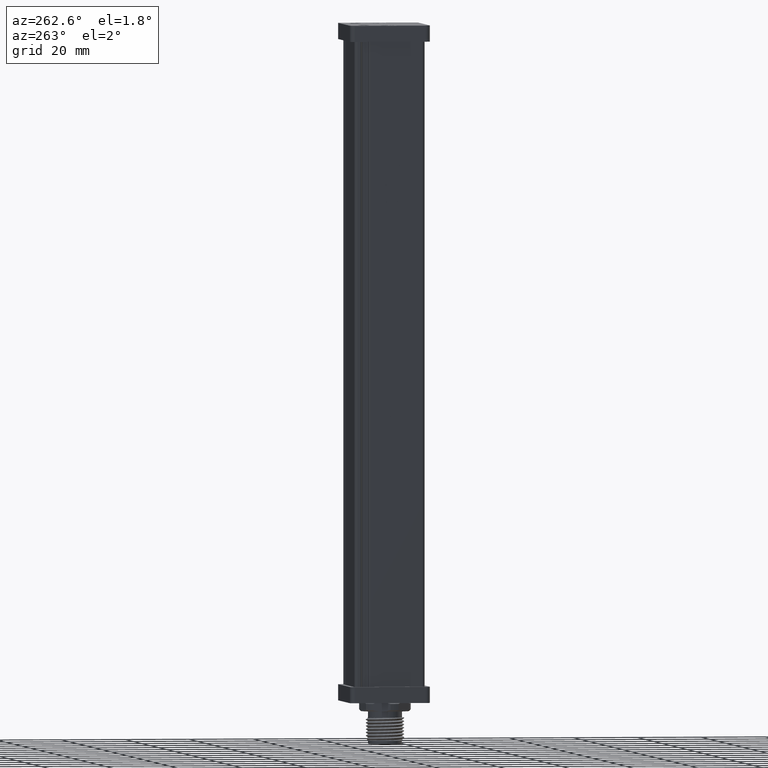
[diagram: clean part render]
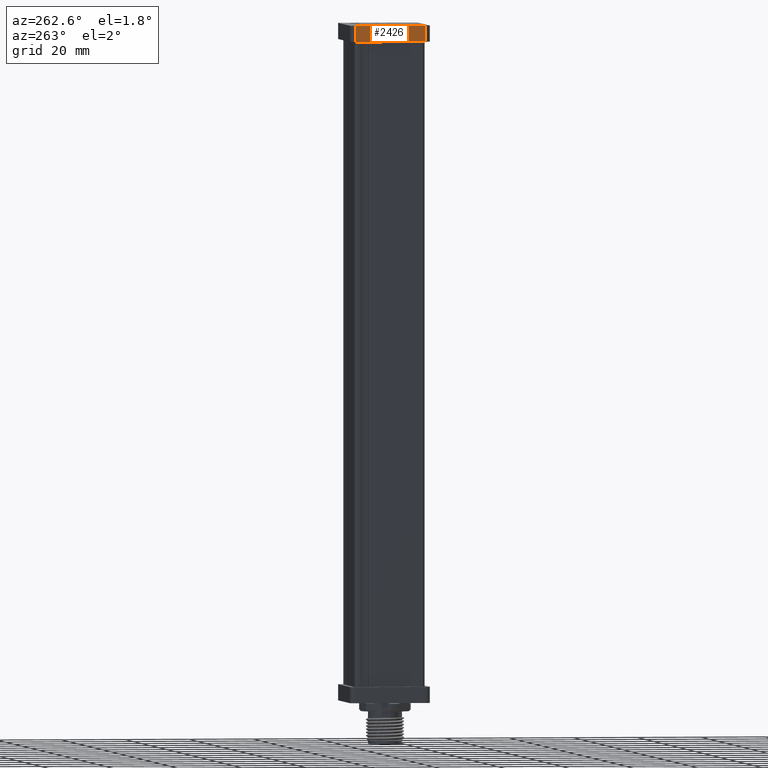
[diagram: same view with one face highlighted and labeled with its STEP entity id]
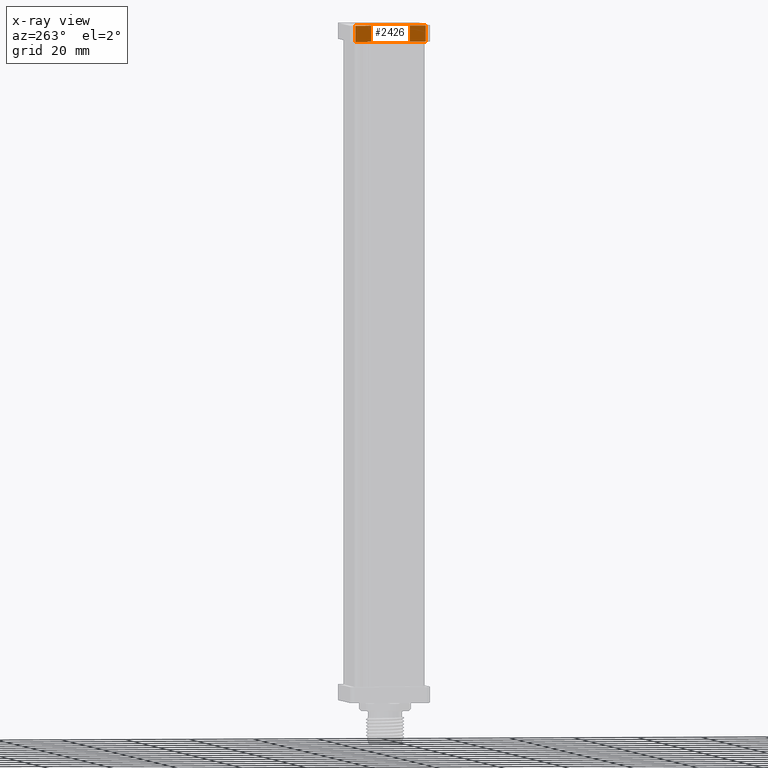
[diagram: x-ray of the same camera — body ghosted, the highlighted face saturated]
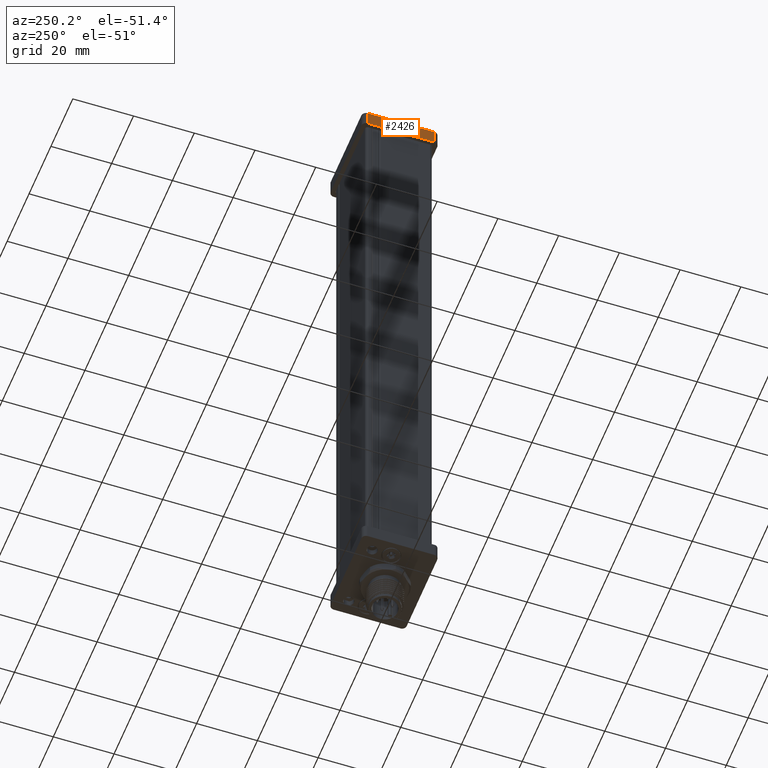
[diagram: same view with one face highlighted and labeled with its STEP entity id]
A machine part, auxiliary view. The second image highlights one B-rep face of the part: STEP entity #2426.
The next image is the same camera in x-ray: the body ghosted, the highlighted face saturated — about 0% of this face is hidden behind the body in this view.
A second angle (auxiliary view) of the same face is appended — the face is thin or edge-on in the first view.
In plain terms, the highlighted planar face has unit normal (1, -0, 0).
Its self-contained STEP definition (entity closure, byte-faithful):
#78 = CARTESIAN_POINT ( 'NONE',  ( -15.50000000000000533, 100.0000000000000000, -10.99999999999998401 ) ) ;
#236 = PLANE ( 'NONE',  #1776 ) ;
#269 = ORIENTED_EDGE ( 'NONE', *, *, #2295, .T. ) ;
#1680 = VECTOR ( 'NONE', #12179, 1000.000000000000000 ) ;
#1776 = AXIS2_PLACEMENT_3D ( 'NONE', #19799, #11160, #16162 ) ;
#2295 = EDGE_CURVE ( 'NONE', #21288, #16508, #5019, .T. ) ;
#2406 = ORIENTED_EDGE ( 'NONE', *, *, #3924, .T. ) ;
#2426 = ADVANCED_FACE ( 'NONE', ( #16052 ), #236, .F. ) ;
#3140 = CARTESIAN_POINT ( 'NONE',  ( -15.50000000000000533, 105.0000000000000142, -12.49999999999997335 ) ) ;
#3258 = ORIENTED_EDGE ( 'NONE', *, *, #15851, .T. ) ;
#3924 = EDGE_CURVE ( 'NONE', #15423, #19619, #7659, .T. ) ;
#4003 = CARTESIAN_POINT ( 'NONE',  ( -15.50000000000000888, 100.0000000000000000, 11.00000000000001599 ) ) ;
#5019 = LINE ( 'NONE', #7069, #19954 ) ;
#5762 = VECTOR ( 'NONE', #20546, 1000.000000000000000 ) ;
#6360 = EDGE_CURVE ( 'NONE', #15423, #16508, #17028, .T. ) ;
#7069 = CARTESIAN_POINT ( 'NONE',  ( -15.50000000000000533, 100.0000000000000000, -10.99999999999998401 ) ) ;
#7659 = LINE ( 'NONE', #13868, #1680 ) ;
#7979 = CARTESIAN_POINT ( 'NONE',  ( -15.50000000000000888, 105.0000000000000142, 11.00000000000001599 ) ) ;
#9789 = CARTESIAN_POINT ( 'NONE',  ( -15.50000000000000533, 105.0000000000000142, -10.99999999999998401 ) ) ;
#11160 = DIRECTION ( 'NONE',  ( 1.000000000000000000, 0.000000000000000000, 1.377972324345833111E-16 ) ) ;
#12179 = DIRECTION ( 'NONE',  ( 0.000000000000000000, 1.000000000000000000, 0.000000000000000000 ) ) ;
#12188 = DIRECTION ( 'NONE',  ( 0.000000000000000000, -1.000000000000000000, 0.000000000000000000 ) ) ;
#13868 = CARTESIAN_POINT ( 'NONE',  ( -15.50000000000000888, 100.0000000000000000, 11.00000000000001599 ) ) ;
#14321 = VECTOR ( 'NONE', #15405, 1000.000000000000000 ) ;
#15405 = DIRECTION ( 'NONE',  ( 1.377972324345833111E-16, 0.000000000000000000, -1.000000000000000000 ) ) ;
#15423 = VERTEX_POINT ( 'NONE', #4003 ) ;
#15851 = EDGE_CURVE ( 'NONE', #19619, #21288, #17454, .T. ) ;
#16052 = FACE_OUTER_BOUND ( 'NONE', #18970, .T. ) ;
#16162 = DIRECTION ( 'NONE',  ( -1.377972324345833111E-16, 0.000000000000000000, 1.000000000000000000 ) ) ;
#16508 = VERTEX_POINT ( 'NONE', #78 ) ;
#16586 = CARTESIAN_POINT ( 'NONE',  ( -15.50000000000000533, 100.0000000000000000, -12.49999999999997335 ) ) ;
#17028 = LINE ( 'NONE', #16586, #5762 ) ;
#17202 = ORIENTED_EDGE ( 'NONE', *, *, #6360, .F. ) ;
#17454 = LINE ( 'NONE', #3140, #14321 ) ;
#18970 = EDGE_LOOP ( 'NONE', ( #3258, #269, #17202, #2406 ) ) ;
#19619 = VERTEX_POINT ( 'NONE', #7979 ) ;
#19799 = CARTESIAN_POINT ( 'NONE',  ( -15.50000000000000533, 100.0000000000000000, -12.49999999999997335 ) ) ;
#19954 = VECTOR ( 'NONE', #12188, 1000.000000000000000 ) ;
#20546 = DIRECTION ( 'NONE',  ( 1.377972324345833111E-16, 0.000000000000000000, -1.000000000000000000 ) ) ;
#21288 = VERTEX_POINT ( 'NONE', #9789 ) ;